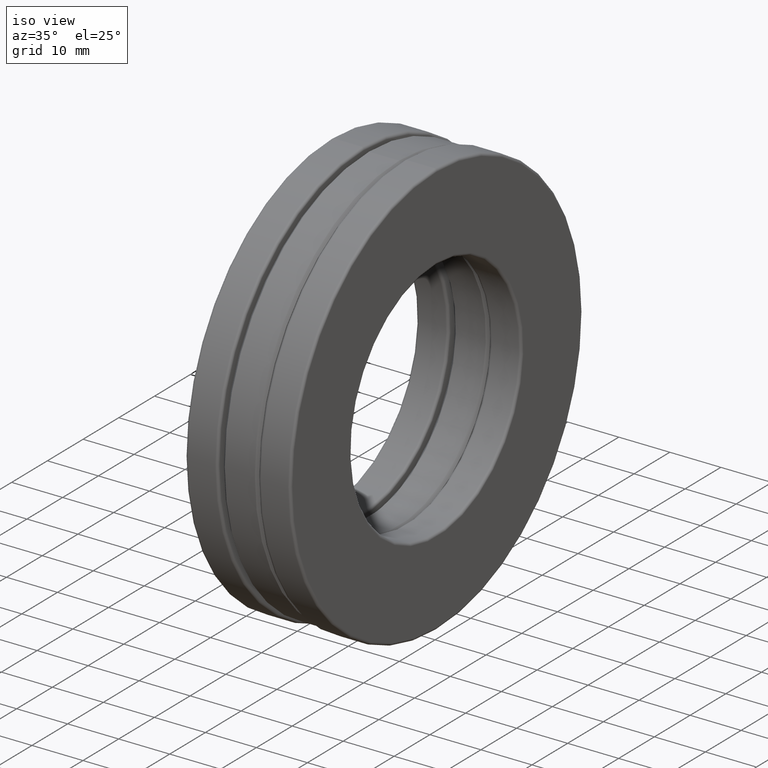
[diagram: clean part render]
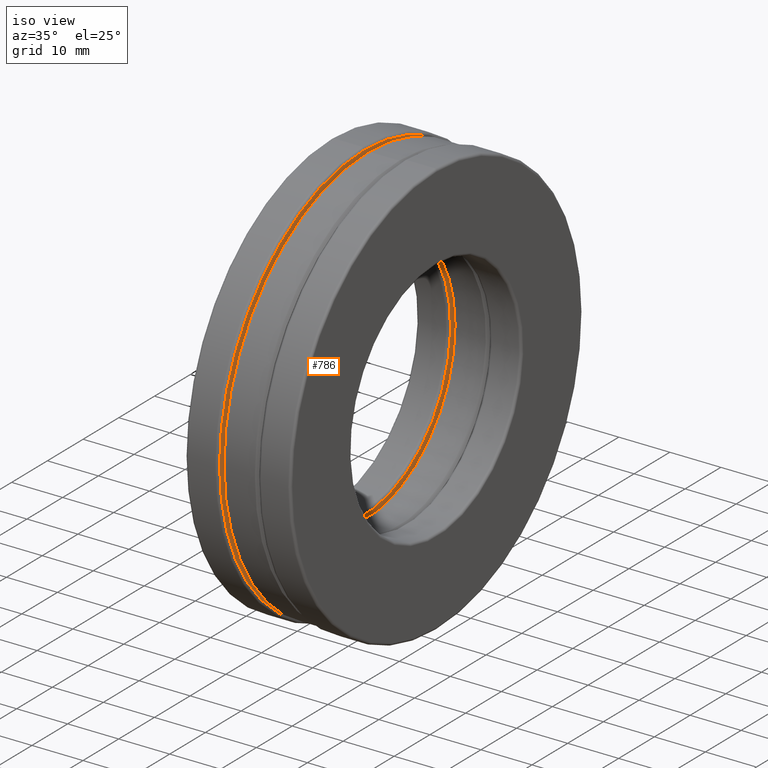
[diagram: same view with one face highlighted and labeled with its STEP entity id]
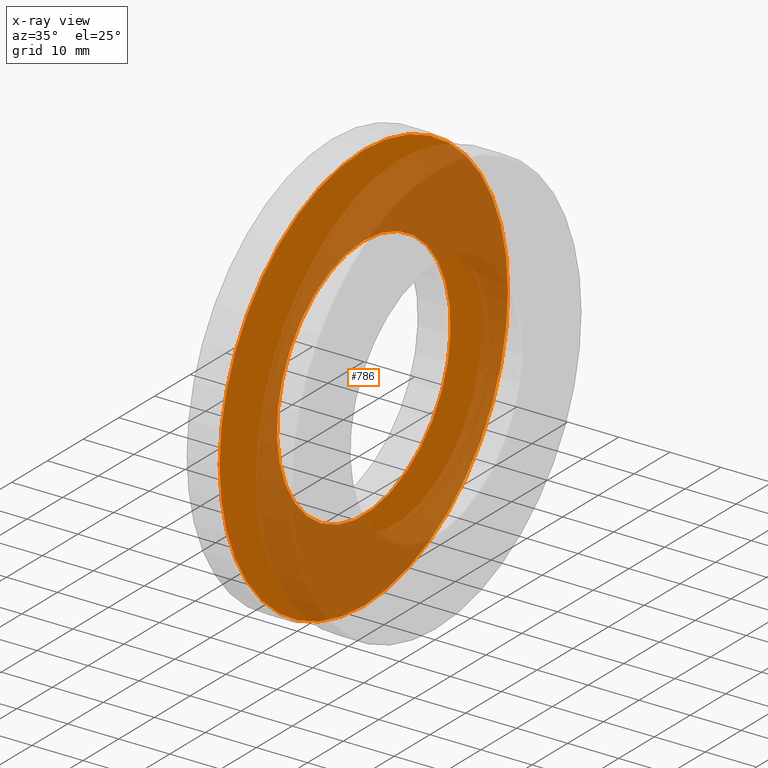
[diagram: x-ray of the same camera — body ghosted, the highlighted face saturated]
A machine part, iso view. The second image highlights one B-rep face of the part: STEP entity #786.
The next image is the same camera in x-ray: the body ghosted, the highlighted face saturated — about 58% of this face is hidden behind the body in this view.
In plain terms, the highlighted planar face has unit normal (1, 0, 0).
Its self-contained STEP definition (entity closure, byte-faithful):
#1 = CARTESIAN_POINT ( 'NONE',  ( -0.1559999999999999400, 0.0000000000000000000, 1.589375000000000900 ) ) ;
#45 = DIRECTION ( 'NONE',  ( 1.000000000000000000, 0.0000000000000000000, 0.0000000000000000000 ) ) ;
#54 = DIRECTION ( 'NONE',  ( -1.000000000000000000, -0.0000000000000000000, -0.0000000000000000000 ) ) ;
#88 = DIRECTION ( 'NONE',  ( -1.000000000000000000, -0.0000000000000000000, -0.0000000000000000000 ) ) ;
#270 = EDGE_CURVE ( 'NONE', #682, #682, #771, .T. ) ;
#310 = CARTESIAN_POINT ( 'NONE',  ( -0.1559999999999999200, 0.0000000000000000000, 0.0000000000000000000 ) ) ;
#317 = FACE_BOUND ( 'NONE', #1404, .T. ) ;
#357 = EDGE_CURVE ( 'NONE', #1345, #1345, #961, .T. ) ;
#435 = AXIS2_PLACEMENT_3D ( 'NONE', #1312, #54, #635 ) ;
#509 = DIRECTION ( 'NONE',  ( 0.0000000000000000000, 0.0000000000000000000, -1.000000000000000000 ) ) ;
#624 = EDGE_LOOP ( 'NONE', ( #840 ) ) ;
#635 = DIRECTION ( 'NONE',  ( 0.0000000000000000000, 0.0000000000000000000, 1.000000000000000000 ) ) ;
#682 = VERTEX_POINT ( 'NONE', #1 ) ;
#739 = FACE_OUTER_BOUND ( 'NONE', #624, .T. ) ;
#771 = CIRCLE ( 'NONE', #435, 1.589375000000000900 ) ;
#786 = ADVANCED_FACE ( 'NONE', ( #317, #739 ), #825, .T. ) ;
#825 = PLANE ( 'NONE',  #1286 ) ;
#840 = ORIENTED_EDGE ( 'NONE', *, *, #270, .F. ) ;
#843 = ORIENTED_EDGE ( 'NONE', *, *, #357, .T. ) ;
#888 = DIRECTION ( 'NONE',  ( 0.0000000000000000000, 0.0000000000000000000, 1.000000000000000000 ) ) ;
#961 = CIRCLE ( 'NONE', #1188, 0.9575000000000001300 ) ;
#1000 = CARTESIAN_POINT ( 'NONE',  ( -0.1559999999999999200, 0.0000000000000000000, 0.9575000000000001300 ) ) ;
#1052 = CARTESIAN_POINT ( 'NONE',  ( -0.1559999999999999200, -8.430628823177530800E-018, 0.0000000000000000000 ) ) ;
#1188 = AXIS2_PLACEMENT_3D ( 'NONE', #310, #88, #888 ) ;
#1286 = AXIS2_PLACEMENT_3D ( 'NONE', #1052, #45, #509 ) ;
#1312 = CARTESIAN_POINT ( 'NONE',  ( -0.1559999999999999400, 0.0000000000000000000, 0.0000000000000000000 ) ) ;
#1345 = VERTEX_POINT ( 'NONE', #1000 ) ;
#1404 = EDGE_LOOP ( 'NONE', ( #843 ) ) ;